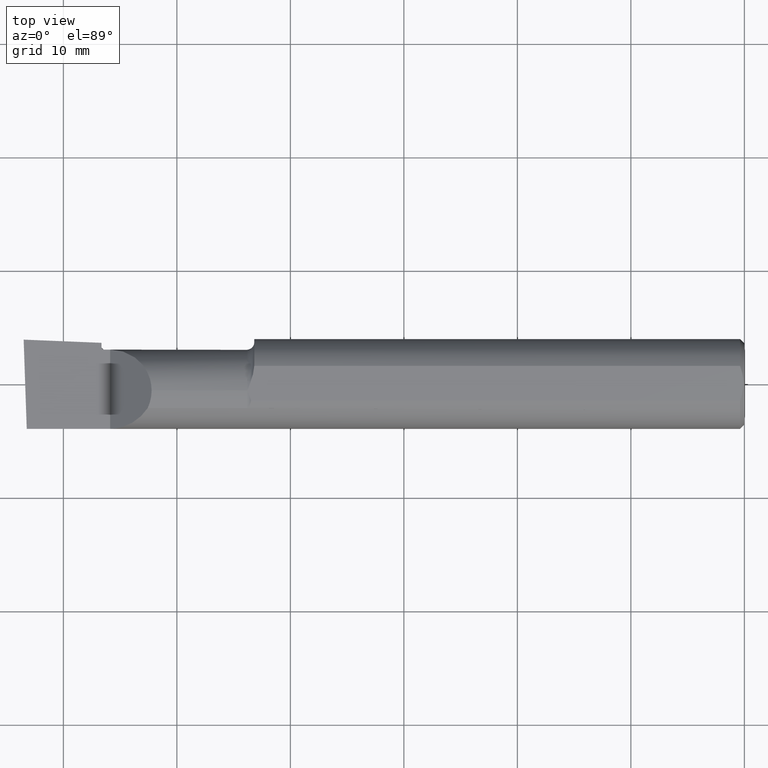
[diagram: clean part render]
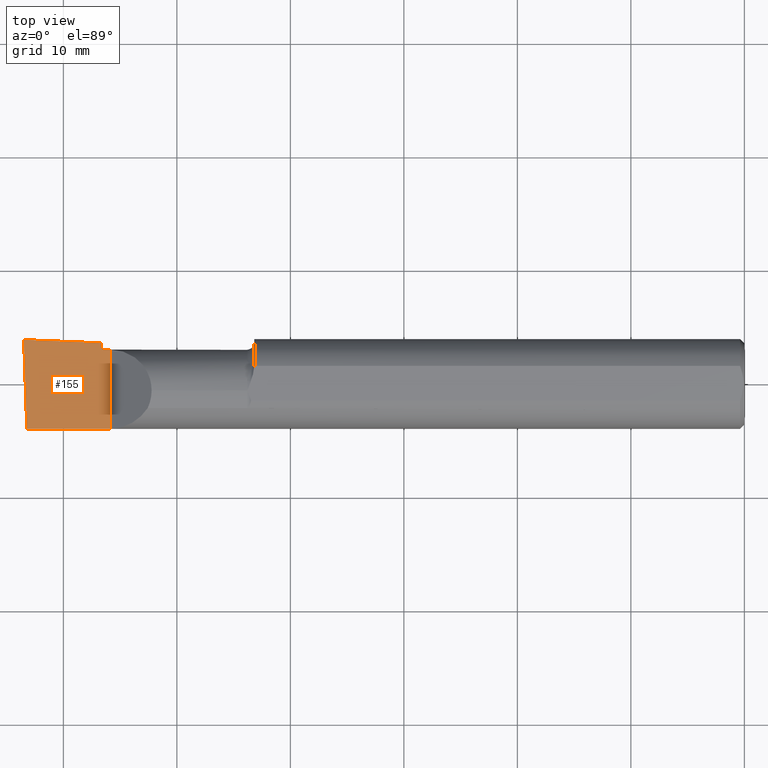
[diagram: same view with one face highlighted and labeled with its STEP entity id]
A machine part, top view. The second image highlights one B-rep face of the part: STEP entity #155.
In plain terms, the highlighted planar face has unit normal (0, 0, 1).
Its self-contained STEP definition (entity closure, byte-faithful):
#21 = LINE ( 'NONE', #700, #54 ) ;
#31 = ORIENTED_EDGE ( 'NONE', *, *, #453, .F. ) ;
#42 = CARTESIAN_POINT ( 'NONE',  ( -2.489266190342419360, -0.1561000000000000165, 3.826894855694925850E-18 ) ) ;
#54 = VECTOR ( 'NONE', #364, 39.37007874015748143 ) ;
#63 = DIRECTION ( 'NONE',  ( 0.000000000000000000, 0.000000000000000000, 1.000000000000000000 ) ) ;
#71 = VECTOR ( 'NONE', #466, 39.37007874015748143 ) ;
#88 = AXIS2_PLACEMENT_3D ( 'NONE', #249, #63, #704 ) ;
#98 = B_SPLINE_CURVE_WITH_KNOTS ( 'NONE', 3,
 ( #130, #415, #529, #429 ),
 .UNSPECIFIED., .F., .F.,
 ( 4, 4 ),
 ( 0.01176971488481076342, 0.01863345644698705117 ),
 .UNSPECIFIED. ) ;
#115 = LINE ( 'NONE', #588, #428 ) ;
#130 = CARTESIAN_POINT ( 'NONE',  ( -2.229999999999999538, 0.1425688816766004785, 0.000000000000000000 ) ) ;
#144 = VECTOR ( 'NONE', #335, 39.37007874015748143 ) ;
#154 = CARTESIAN_POINT ( 'NONE',  ( -2.229999999999999538, 0.1289000000000001256, 0.000000000000000000 ) ) ;
#155 = ADVANCED_FACE ( 'NONE', ( #305 ), #536, .T. ) ;
#178 = CARTESIAN_POINT ( 'NONE',  ( -2.056000000000000050, -0.1560999999999999888, 3.826894855694925850E-18 ) ) ;
#182 = CARTESIAN_POINT ( 'NONE',  ( -2.199999999999999289, -0.1560999999999999888, 3.826894855694925850E-18 ) ) ;
#190 = ORIENTED_EDGE ( 'NONE', *, *, #604, .T. ) ;
#205 = ORIENTED_EDGE ( 'NONE', *, *, #242, .T. ) ;
#206 = EDGE_CURVE ( 'NONE', #376, #648, #98, .T. ) ;
#219 = CARTESIAN_POINT ( 'NONE',  ( -2.499553225608604823, 0.1407279727905360600, 3.826894855694925850E-18 ) ) ;
#242 = EDGE_CURVE ( 'NONE', #412, #713, #21, .T. ) ;
#249 = CARTESIAN_POINT ( 'NONE',  ( -2.056000000000000050, 0.1560999999999999888, 3.826894855694925850E-18 ) ) ;
#252 = DIRECTION ( 'NONE',  ( -0.000000000000000000, -0.000000000000000000, -1.000000000000000000 ) ) ;
#299 = DIRECTION ( 'NONE',  ( 0.000000000000000000, 1.000000000000000000, 0.000000000000000000 ) ) ;
#305 = FACE_OUTER_BOUND ( 'NONE', #645, .T. ) ;
#323 = ORIENTED_EDGE ( 'NONE', *, *, #480, .T. ) ;
#331 = CARTESIAN_POINT ( 'NONE',  ( -2.229999999999999538, 0.1425688816766004785, 0.000000000000000000 ) ) ;
#335 = DIRECTION ( 'NONE',  ( 0.03463576215158579996, -0.9994000019912840926, 0.000000000000000000 ) ) ;
#362 = VERTEX_POINT ( 'NONE', #154 ) ;
#364 = DIRECTION ( 'NONE',  ( -1.000000000000000000, 0.000000000000000000, 0.000000000000000000 ) ) ;
#376 = VERTEX_POINT ( 'NONE', #331 ) ;
#393 = ORIENTED_EDGE ( 'NONE', *, *, #629, .T. ) ;
#412 = VERTEX_POINT ( 'NONE', #732 ) ;
#415 = CARTESIAN_POINT ( 'NONE',  ( -2.319999845125628735, 0.1462561883915259875, 3.826894855694925850E-18 ) ) ;
#422 = DIRECTION ( 'NONE',  ( 0.000000000000000000, 1.000000000000000000, 0.000000000000000000 ) ) ;
#425 = LINE ( 'NONE', #482, #616 ) ;
#428 = VECTOR ( 'NONE', #299, 39.37007874015748143 ) ;
#429 = CARTESIAN_POINT ( 'NONE',  ( -2.500000000000000000, 0.1536194554637218546, 0.000000000000000000 ) ) ;
#453 = EDGE_CURVE ( 'NONE', #652, #498, #462, .T. ) ;
#462 = LINE ( 'NONE', #178, #71 ) ;
#466 = DIRECTION ( 'NONE',  ( -1.000000000000000000, -0.000000000000000000, -0.000000000000000000 ) ) ;
#480 = EDGE_CURVE ( 'NONE', #648, #498, #687, .T. ) ;
#482 = CARTESIAN_POINT ( 'NONE',  ( -2.199999999999999289, 0.1560999999999999888, 3.826894855694925850E-18 ) ) ;
#487 = CARTESIAN_POINT ( 'NONE',  ( -2.500000000000000000, 0.1536194554637218546, 0.000000000000000000 ) ) ;
#498 = VERTEX_POINT ( 'NONE', #42 ) ;
#529 = CARTESIAN_POINT ( 'NONE',  ( -2.409999853432402528, 0.1499395137171538051, 3.826894855694925850E-18 ) ) ;
#535 = CIRCLE ( 'NONE', #627, 0.009999999999999892655 ) ;
#536 = PLANE ( 'NONE',  #88 ) ;
#559 = ORIENTED_EDGE ( 'NONE', *, *, #678, .T. ) ;
#585 = CARTESIAN_POINT ( 'NONE',  ( -2.219999999999999751, 0.1189000000000001306, 3.826894855694925850E-18 ) ) ;
#588 = CARTESIAN_POINT ( 'NONE',  ( -2.229999999999999538, 0.1560999999999999888, 3.826894855694925850E-18 ) ) ;
#604 = EDGE_CURVE ( 'NONE', #713, #362, #535, .T. ) ;
#616 = VECTOR ( 'NONE', #422, 39.37007874015748143 ) ;
#621 = ORIENTED_EDGE ( 'NONE', *, *, #206, .T. ) ;
#627 = AXIS2_PLACEMENT_3D ( 'NONE', #646, #252, #640 ) ;
#629 = EDGE_CURVE ( 'NONE', #652, #412, #425, .T. ) ;
#640 = DIRECTION ( 'NONE',  ( 1.000000000000000000, 0.000000000000000000, 0.000000000000000000 ) ) ;
#645 = EDGE_LOOP ( 'NONE', ( #621, #323, #31, #393, #205, #190, #559 ) ) ;
#646 = CARTESIAN_POINT ( 'NONE',  ( -2.219999999999999751, 0.1289000000000001256, 0.000000000000000000 ) ) ;
#648 = VERTEX_POINT ( 'NONE', #487 ) ;
#652 = VERTEX_POINT ( 'NONE', #182 ) ;
#678 = EDGE_CURVE ( 'NONE', #362, #376, #115, .T. ) ;
#687 = LINE ( 'NONE', #219, #144 ) ;
#700 = CARTESIAN_POINT ( 'NONE',  ( 0.000000000000000000, 0.1189000000000001306, 3.826894855694925850E-18 ) ) ;
#704 = DIRECTION ( 'NONE',  ( 1.000000000000000000, 0.000000000000000000, -0.000000000000000000 ) ) ;
#713 = VERTEX_POINT ( 'NONE', #585 ) ;
#732 = CARTESIAN_POINT ( 'NONE',  ( -2.199999999999999289, 0.1189000000000001306, 3.826894855694925850E-18 ) ) ;